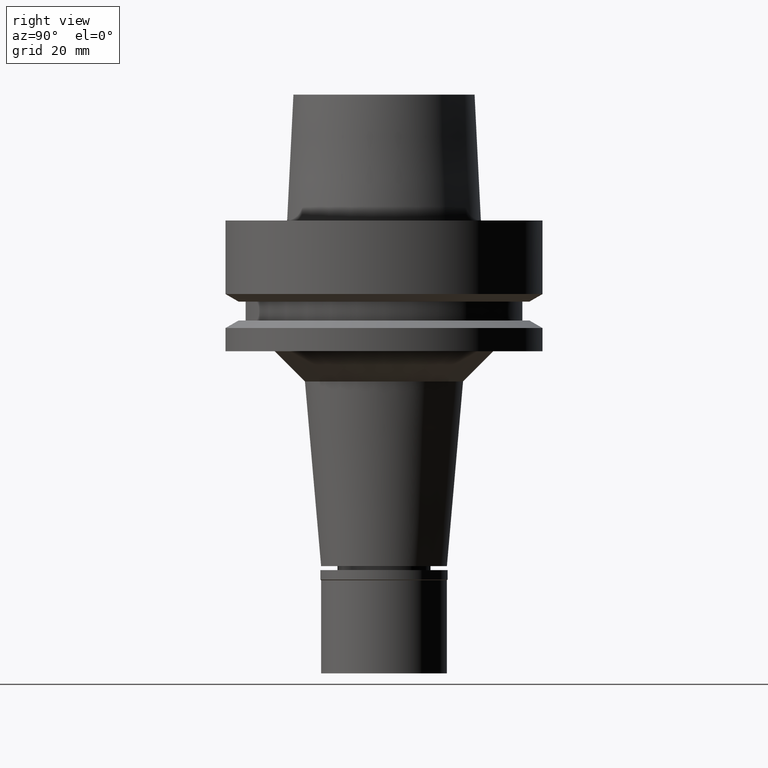
[diagram: clean part render]
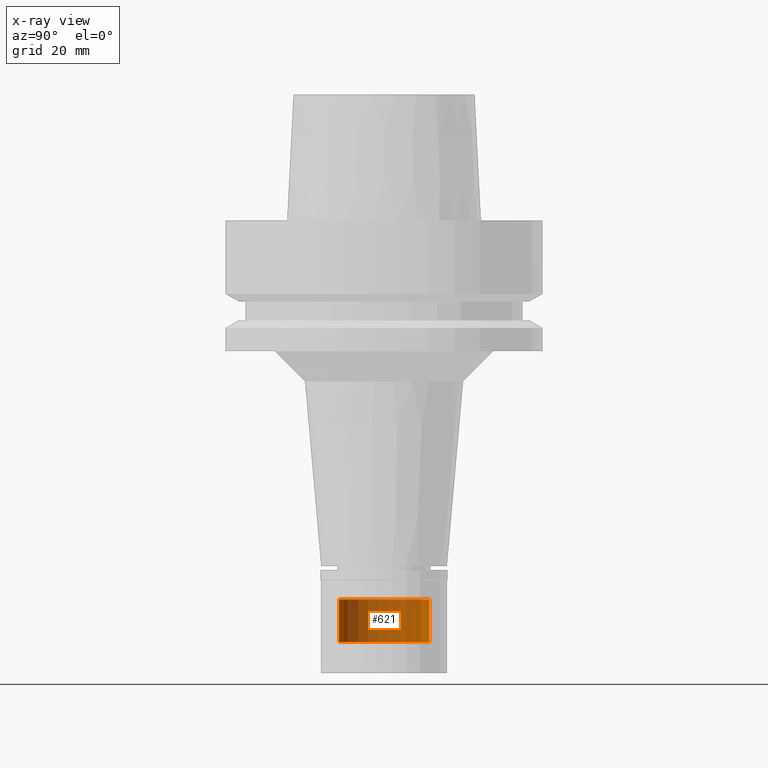
[diagram: x-ray — body ghosted, one internal face saturated and labeled with its STEP entity id]
A machine part, right view, then the same camera in x-ray: the body is ghosted and one INTERNAL B-rep face — a face not visible from any outside direction — is saturated and labeled: STEP entity #621.
In plain terms, the highlighted cylindrical surface (partial cylindrical patch) has radius 9 mm, axis along (0, 0, 1).
Its self-contained STEP definition (entity closure, byte-faithful):
#47 = CARTESIAN_POINT ( 'NONE',  ( 0.0000000000000000000, 9.000000000000000000, -75.30000000000001137 ) ) ;
#139 = VECTOR ( 'NONE', #1094, 1000.000000000000000 ) ;
#159 = CYLINDRICAL_SURFACE ( 'NONE', #1067, 9.000000000000000000 ) ;
#205 = VERTEX_POINT ( 'NONE', #1694 ) ;
#206 = CARTESIAN_POINT ( 'NONE',  ( 0.0000000000000000000, 0.0000000000000000000, -75.30000000000001137 ) ) ;
#212 = EDGE_LOOP ( 'NONE', ( #2335, #633, #2619, #1007 ) ) ;
#216 = LINE ( 'NONE', #47, #139 ) ;
#401 = DIRECTION ( 'NONE',  ( 0.0000000000000000000, 1.000000000000000000, 0.0000000000000000000 ) ) ;
#444 = DIRECTION ( 'NONE',  ( 0.0000000000000000000, 0.0000000000000000000, -1.000000000000000000 ) ) ;
#456 = CIRCLE ( 'NONE', #835, 9.000000000000000000 ) ;
#469 = VERTEX_POINT ( 'NONE', #1830 ) ;
#596 = VECTOR ( 'NONE', #2014, 1000.000000000000000 ) ;
#621 = ADVANCED_FACE ( 'NONE', ( #2112 ), #159, .T. ) ;
#633 = ORIENTED_EDGE ( 'NONE', *, *, #2692, .F. ) ;
#670 = CARTESIAN_POINT ( 'NONE',  ( 0.0000000000000000000, -9.000000000000000000, -75.30000000000001137 ) ) ;
#805 = DIRECTION ( 'NONE',  ( 0.0000000000000000000, 1.000000000000000000, 0.0000000000000000000 ) ) ;
#835 = AXIS2_PLACEMENT_3D ( 'NONE', #206, #444, #2191 ) ;
#876 = AXIS2_PLACEMENT_3D ( 'NONE', #2837, #1317, #401 ) ;
#988 = VERTEX_POINT ( 'NONE', #1558 ) ;
#1007 = ORIENTED_EDGE ( 'NONE', *, *, #1219, .T. ) ;
#1067 = AXIS2_PLACEMENT_3D ( 'NONE', #2811, #1492, #805 ) ;
#1094 = DIRECTION ( 'NONE',  ( 0.0000000000000000000, 0.0000000000000000000, -1.000000000000000000 ) ) ;
#1202 = VERTEX_POINT ( 'NONE', #2192 ) ;
#1219 = EDGE_CURVE ( 'NONE', #1202, #988, #216, .T. ) ;
#1317 = DIRECTION ( 'NONE',  ( 0.0000000000000000000, 0.0000000000000000000, 1.000000000000000000 ) ) ;
#1353 = EDGE_CURVE ( 'NONE', #988, #469, #2118, .T. ) ;
#1492 = DIRECTION ( 'NONE',  ( 0.0000000000000000000, 0.0000000000000000000, 1.000000000000000000 ) ) ;
#1558 = CARTESIAN_POINT ( 'NONE',  ( 0.0000000000000000000, 9.000000000000000000, -83.79999999999999716 ) ) ;
#1694 = CARTESIAN_POINT ( 'NONE',  ( 0.0000000000000000000, -9.000000000000000000, -75.30000000000001137 ) ) ;
#1830 = CARTESIAN_POINT ( 'NONE',  ( 0.0000000000000000000, -9.000000000000000000, -83.79999999999999716 ) ) ;
#1868 = EDGE_CURVE ( 'NONE', #205, #1202, #456, .T. ) ;
#2014 = DIRECTION ( 'NONE',  ( 0.0000000000000000000, 0.0000000000000000000, -1.000000000000000000 ) ) ;
#2112 = FACE_OUTER_BOUND ( 'NONE', #212, .T. ) ;
#2118 = CIRCLE ( 'NONE', #876, 9.000000000000000000 ) ;
#2191 = DIRECTION ( 'NONE',  ( 0.0000000000000000000, -1.000000000000000000, 0.0000000000000000000 ) ) ;
#2192 = CARTESIAN_POINT ( 'NONE',  ( 0.0000000000000000000, 9.000000000000000000, -75.30000000000001137 ) ) ;
#2335 = ORIENTED_EDGE ( 'NONE', *, *, #1353, .T. ) ;
#2619 = ORIENTED_EDGE ( 'NONE', *, *, #1868, .T. ) ;
#2658 = LINE ( 'NONE', #670, #596 ) ;
#2692 = EDGE_CURVE ( 'NONE', #205, #469, #2658, .T. ) ;
#2811 = CARTESIAN_POINT ( 'NONE',  ( 0.0000000000000000000, 0.0000000000000000000, -89.23999999999999488 ) ) ;
#2837 = CARTESIAN_POINT ( 'NONE',  ( 0.0000000000000000000, 0.0000000000000000000, -83.79999999999999716 ) ) ;